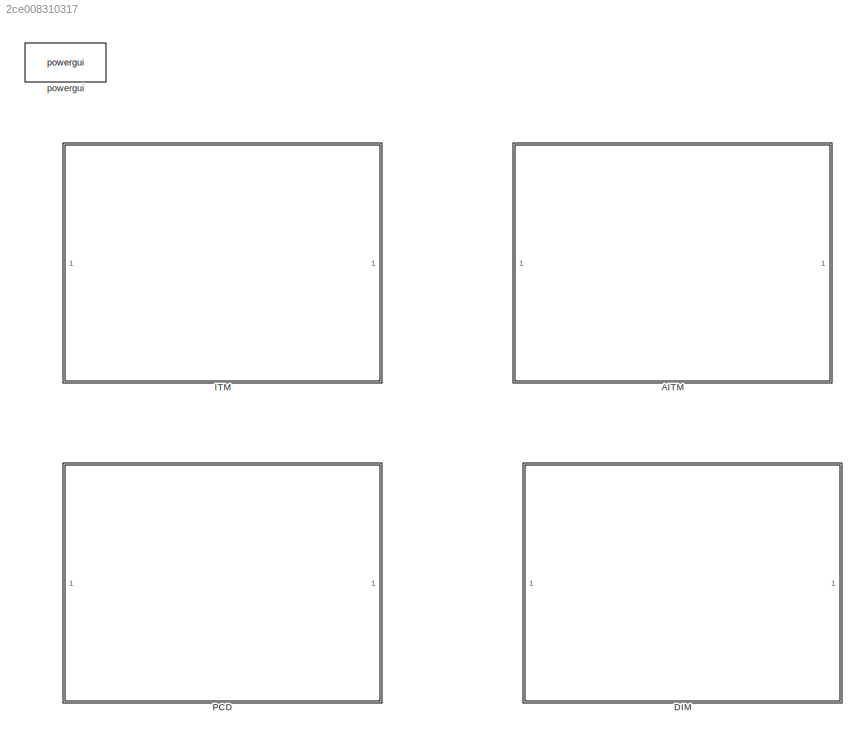
MODEL slx_2ce008310317
KIND model
CONFIG AbsTol = auto
CONFIG EnableMultiTasking = off
CONFIG FixedStep = auto
CONFIG MaxStep = auto
CONFIG MinStep = auto
CONFIG RelTol = 1e-3
CONFIG SampleTimeConstraint = Unconstrained
CONFIG SolverName = ode1
CONFIG StartTime = 0.0
CONFIG StopTime = 1
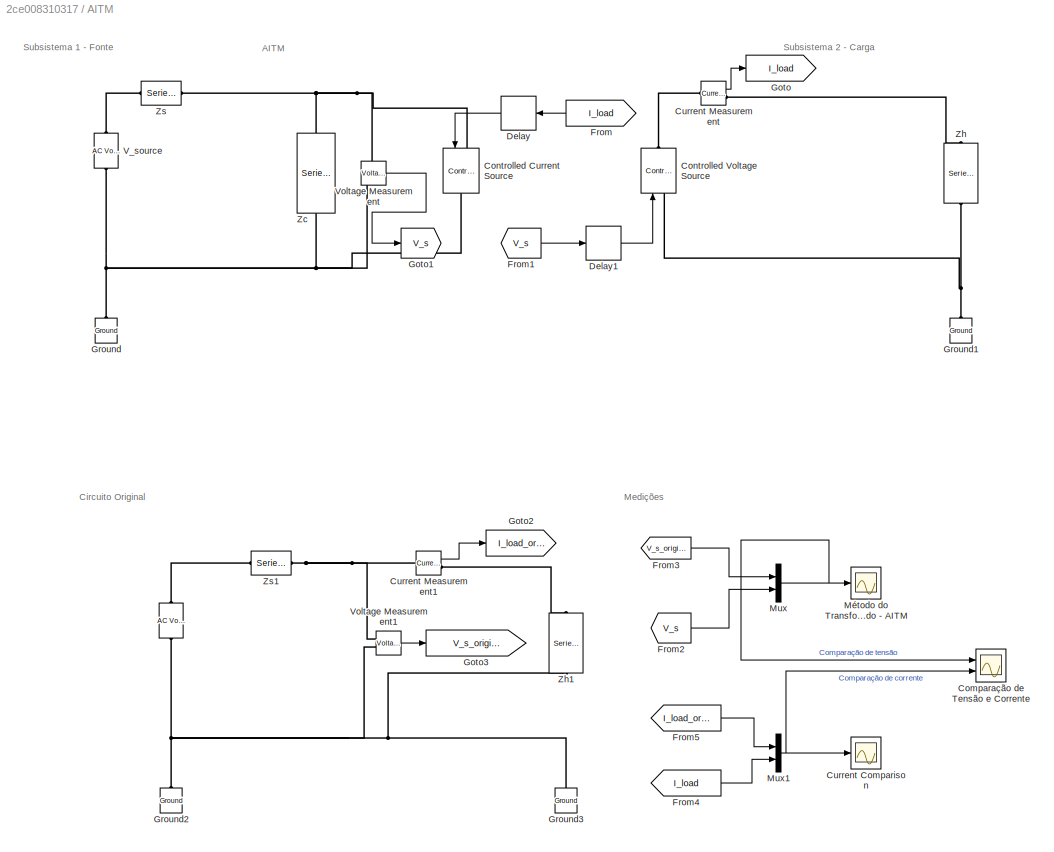
BLOCK [SubSystem] AITM
  Commented = on
  Ports = []
  RequestExecContextInheritance = off
BLOCK [Reference] AITM/   REF=powerlib/Electrical
Sources/AC Voltage Source
  NameLocation = right
  Ports = [0, 0, 0, 0, 0, 1, 1]
  SourceBlock = powerlib/Electrical\nSources/AC Voltage Source
  SourceProductBaseCode = PS
  SourceType = AC Voltage Source
BLOCK [Scope] AITM/Comparação de Tensão e Corrente
  Floating = off
  NumInputPorts = 2
  Ports = [2]
  ScopeSpecificationString = Simulink.scopes.TimeScopeBlockCfg('CurrentConfiguration', extmgr.ConfigurationSet(extmgr.Configuration('Core','General UI',true,'FigureColor',[0 0 0]),extmgr.Configuration('Core','Source UI',true),extmgr.Configuration('Sources','WiredSimulink',true,'DataLoggingVariableName','Aitm','DataLogging',true,'DataLoggingSaveFormat','StructureWithTime'),extmgr.Configuration('Visuals','Time Domain',true,'Ser...<+2428ch>
BLOCK [Reference] AITM/Controlled Current Source  REF=powerlib/Electrical
Sources/Controlled Current Source
  NameLocation = left
  Ports = [1, 0, 0, 0, 0, 1, 1]
  SourceBlock = powerlib/Electrical\nSources/Controlled Current Source
  SourceProductBaseCode = PS
  SourceType = Controlled Current Source
BLOCK [Reference] AITM/Controlled Voltage Source  REF=powerlib/Electrical
Sources/Controlled Voltage Source
  NameLocation = right
  Ports = [1, 0, 0, 0, 0, 1, 1]
  SourceBlock = powerlib/Electrical\nSources/Controlled Voltage Source
  SourceProductBaseCode = PS
  SourceType = Controlled Voltage Source
BLOCK [Scope] AITM/Current Comparison
  Floating = off
  NumInputPorts = 1
  Ports = [1]
  ScopeSpecificationString = Simulink.scopes.TimeScopeBlockCfg('CurrentConfiguration', extmgr.ConfigurationSet(extmgr.Configuration('Core','General UI',true),extmgr.Configuration('Core','Source UI',true),extmgr.Configuration('Sources','WiredSimulink',true,'DataLoggingVariableName','ScopeData2'),extmgr.Configuration('Visuals','Time Domain',true,'SerializedDisplays',{struct('MinYLimReal','-20.83742','MaxYLimReal','21.41239','YL...<+1478ch>
BLOCK [Reference] AITM/Current Measurement  REF=powerlib/Measurements/Current Measurement
  Ports = [0, 1, 0, 0, 0, 1, 1]
  SourceBlock = powerlib/Measurements/Current Measurement
  SourceProductBaseCode = PS
  SourceType = Current Measurement
  UserDataPersistent = on
BLOCK [Reference] AITM/Current Measurement1  REF=powerlib/Measurements/Current Measurement
  Ports = [0, 1, 0, 0, 0, 1, 1]
  SourceBlock = powerlib/Measurements/Current Measurement
  SourceProductBaseCode = PS
  SourceType = Current Measurement
  UserDataPersistent = on
BLOCK [Delay] AITM/Delay
  DelayLength = 5
  InputPortMap = u0
  NameLocation = top
  Ports = [1, 1]
BLOCK [Delay] AITM/Delay1
  DelayLength = 5
  InputPortMap = u0
  Ports = [1, 1]
BLOCK [From] AITM/From
  GotoTag = I_load
  NameLocation = top
BLOCK [From] AITM/From1
  GotoTag = V_s
BLOCK [From] AITM/From2
  GotoTag = V_s
BLOCK [From] AITM/From3
  GotoTag = V_s_original
BLOCK [From] AITM/From4
  GotoTag = I_load
BLOCK [From] AITM/From5
  GotoTag = I_load_original
BLOCK [Goto] AITM/Goto
  GotoTag = I_load
BLOCK [Goto] AITM/Goto1
  GotoTag = V_s
BLOCK [Goto] AITM/Goto2
  GotoTag = I_load_original
BLOCK [Goto] AITM/Goto3
  GotoTag = V_s_original
BLOCK [Reference] AITM/Ground  REF=powerlib/Elements/Ground
  NameLocation = right
  Ports = [0, 0, 0, 0, 0, 1]
  SourceBlock = powerlib/Elements/Ground
  SourceProductBaseCode = PS
  SourceType = Ground
BLOCK [Reference] AITM/Ground1  REF=powerlib/Elements/Ground
  NameLocation = right
  Ports = [0, 0, 0, 0, 0, 1]
  SourceBlock = powerlib/Elements/Ground
  SourceProductBaseCode = PS
  SourceType = Ground
BLOCK [Reference] AITM/Ground2  REF=powerlib/Elements/Ground
  NameLocation = right
  Ports = [0, 0, 0, 0, 0, 1]
  SourceBlock = powerlib/Elements/Ground
  SourceProductBaseCode = PS
  SourceType = Ground
BLOCK [Reference] AITM/Ground3  REF=powerlib/Elements/Ground
  NameLocation = right
  Ports = [0, 0, 0, 0, 0, 1]
  SourceBlock = powerlib/Elements/Ground
  SourceProductBaseCode = PS
  SourceType = Ground
BLOCK [Mux] AITM/Mux
  DisplayOption = bar
  Inputs = 2
  Ports = [2, 1]
BLOCK [Mux] AITM/Mux1
  DisplayOption = bar
  Inputs = 2
  Ports = [2, 1]
BLOCK [Scope] AITM/Método do Transformador Ideal Avançado - AITM
  Floating = off
  NumInputPorts = 1
  Ports = [1]
  ScopeSpecificationString = Simulink.scopes.TimeScopeBlockCfg('CurrentConfiguration', extmgr.ConfigurationSet(extmgr.Configuration('Core','General UI',true),extmgr.Configuration('Core','Source UI',true),extmgr.Configuration('Sources','WiredSimulink',true,'DataLoggingVariableName','aitm','DataLoggingSaveFormat','Array'),extmgr.Configuration('Visuals','Time Domain',true,'SerializedDisplays',{struct('MinYLimReal','-896848945201...<+2012ch>
BLOCK [Reference] AITM/V_source  REF=powerlib/Electrical
Sources/AC Voltage Source
  NameLocation = right
  Ports = [0, 0, 0, 0, 0, 1, 1]
  SourceBlock = powerlib/Electrical\nSources/AC Voltage Source
  SourceProductBaseCode = PS
  SourceType = AC Voltage Source
BLOCK [Reference] AITM/Voltage Measurement  REF=powerlib/Measurements/Voltage Measurement
  Ports = [0, 1, 0, 0, 0, 2]
  SourceBlock = powerlib/Measurements/Voltage Measurement
  SourceProductBaseCode = PS
  SourceType = Voltage Measurement
  UserDataPersistent = on
BLOCK [Reference] AITM/Voltage Measurement1  REF=powerlib/Measurements/Voltage Measurement
  Ports = [0, 1, 0, 0, 0, 2]
  SourceBlock = powerlib/Measurements/Voltage Measurement
  SourceProductBaseCode = PS
  SourceType = Voltage Measurement
  UserDataPersistent = on
BLOCK [Reference] AITM/Zc  REF=powerlib/Elements/Series RLC Branch
  NameLocation = left
  Ports = [0, 0, 0, 0, 0, 1, 1]
  SourceBlock = powerlib/Elements/Series RLC Branch
  SourceProductBaseCode = PS
  SourceType = Series RLC Branch
BLOCK [Reference] AITM/Zh  REF=powerlib/Elements/Series RLC Branch
  NameLocation = left
  Ports = [0, 0, 0, 0, 0, 1, 1]
  SourceBlock = powerlib/Elements/Series RLC Branch
  SourceProductBaseCode = PS
  SourceType = Series RLC Branch
BLOCK [Reference] AITM/Zh1  REF=powerlib/Elements/Series RLC Branch
  NameLocation = left
  Ports = [0, 0, 0, 0, 0, 1, 1]
  SourceBlock = powerlib/Elements/Series RLC Branch
  SourceProductBaseCode = PS
  SourceType = Series RLC Branch
BLOCK [Reference] AITM/Zs  REF=powerlib/Elements/Series RLC Branch
  Ports = [0, 0, 0, 0, 0, 1, 1]
  SourceBlock = powerlib/Elements/Series RLC Branch
  SourceProductBaseCode = PS
  SourceType = Series RLC Branch
BLOCK [Reference] AITM/Zs1  REF=powerlib/Elements/Series RLC Branch
  Ports = [0, 0, 0, 0, 0, 1, 1]
  SourceBlock = powerlib/Elements/Series RLC Branch
  SourceProductBaseCode = PS
  SourceType = Series RLC Branch
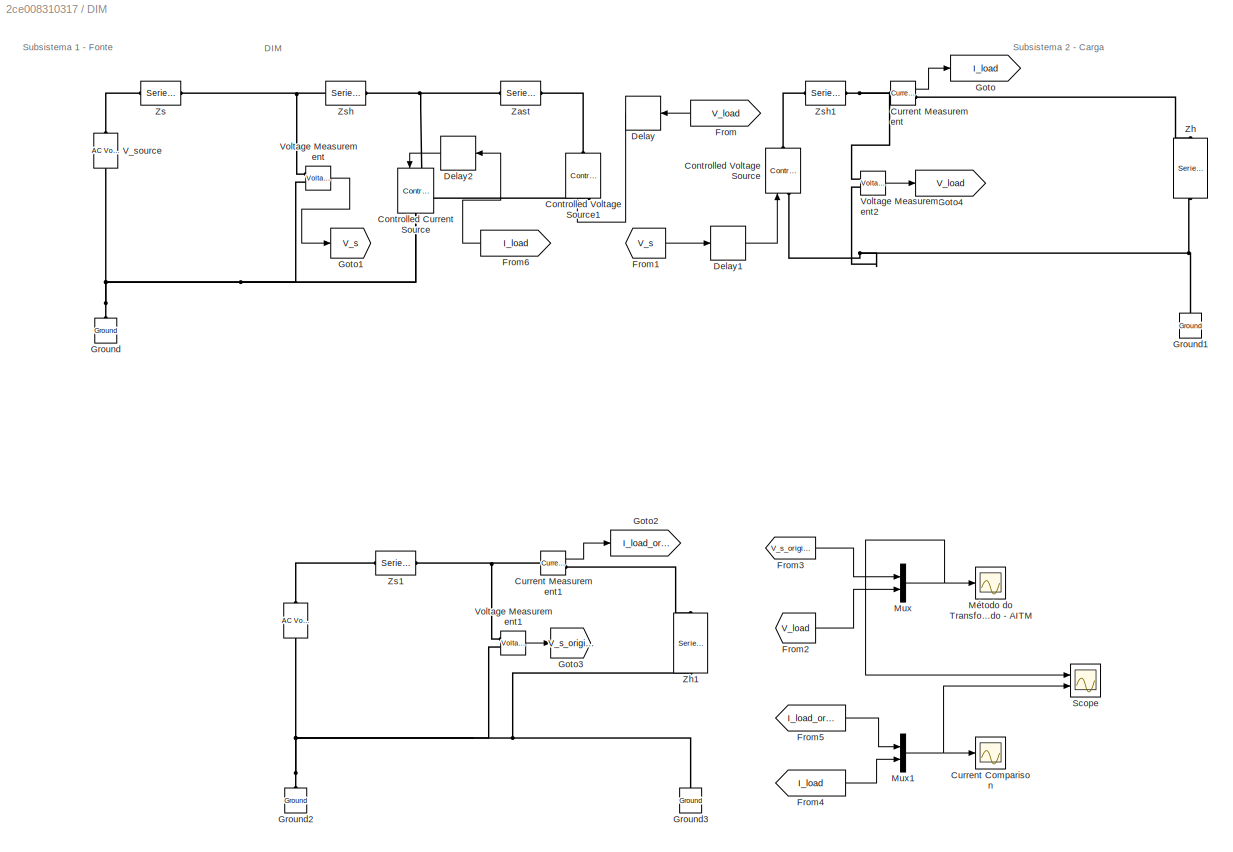
BLOCK [SubSystem] DIM
  Commented = on
  Ports = []
  RequestExecContextInheritance = off
BLOCK [Reference] DIM/   REF=powerlib/Electrical
Sources/AC Voltage Source
  NameLocation = right
  Ports = [0, 0, 0, 0, 0, 1, 1]
  SourceBlock = powerlib/Electrical\nSources/AC Voltage Source
  SourceProductBaseCode = PS
  SourceType = AC Voltage Source
BLOCK [Reference] DIM/Controlled Current Source  REF=powerlib/Electrical
Sources/Controlled Current Source
  NameLocation = left
  Ports = [1, 0, 0, 0, 0, 1, 1]
  SourceBlock = powerlib/Electrical\nSources/Controlled Current Source
  SourceProductBaseCode = PS
  SourceType = Controlled Current Source
BLOCK [Reference] DIM/Controlled Voltage Source  REF=powerlib/Electrical
Sources/Controlled Voltage Source
  NameLocation = right
  Ports = [1, 0, 0, 0, 0, 1, 1]
  SourceBlock = powerlib/Electrical\nSources/Controlled Voltage Source
  SourceProductBaseCode = PS
  SourceType = Controlled Voltage Source
BLOCK [Reference] DIM/Controlled Voltage Source1  REF=powerlib/Electrical
Sources/Controlled Voltage Source
  NameLocation = left
  Ports = [1, 0, 0, 0, 0, 1, 1]
  SourceBlock = powerlib/Electrical\nSources/Controlled Voltage Source
  SourceProductBaseCode = PS
  SourceType = Controlled Voltage Source
BLOCK [Scope] DIM/Current Comparison
  Floating = off
  NumInputPorts = 1
  Ports = [1]
  ScopeSpecificationString = Simulink.scopes.TimeScopeBlockCfg('CurrentConfiguration', extmgr.ConfigurationSet(extmgr.Configuration('Core','General UI',true),extmgr.Configuration('Core','Source UI',true),extmgr.Configuration('Sources','WiredSimulink',true,'DataLoggingVariableName','ScopeData2'),extmgr.Configuration('Visuals','Time Domain',true,'SerializedDisplays',{struct('MinYLimReal','-17.83123','MaxYLimReal','17.83123','YL...<+1407ch>
BLOCK [Reference] DIM/Current Measurement  REF=powerlib/Measurements/Current Measurement
  Ports = [0, 1, 0, 0, 0, 1, 1]
  SourceBlock = powerlib/Measurements/Current Measurement
  SourceProductBaseCode = PS
  SourceType = Current Measurement
  UserDataPersistent = on
BLOCK [Reference] DIM/Current Measurement1  REF=powerlib/Measurements/Current Measurement
  Ports = [0, 1, 0, 0, 0, 1, 1]
  SourceBlock = powerlib/Measurements/Current Measurement
  SourceProductBaseCode = PS
  SourceType = Current Measurement
  UserDataPersistent = on
BLOCK [Delay] DIM/Delay
  DelayLength = 5
  InputPortMap = u0
  NameLocation = top
  Ports = [1, 1]
BLOCK [Delay] DIM/Delay1
  DelayLength = 5
  InputPortMap = u0
  Ports = [1, 1]
BLOCK [Delay] DIM/Delay2
  DelayLength = 5
  InputPortMap = u0
  NameLocation = top
  Ports = [1, 1]
BLOCK [From] DIM/From
  GotoTag = V_load
  NameLocation = top
BLOCK [From] DIM/From1
  GotoTag = V_s
BLOCK [From] DIM/From2
  GotoTag = V_load
BLOCK [From] DIM/From3
  GotoTag = V_s_original
BLOCK [From] DIM/From4
  GotoTag = I_load
BLOCK [From] DIM/From5
  GotoTag = I_load_original
BLOCK [From] DIM/From6
  GotoTag = I_load
  NameLocation = top
BLOCK [Goto] DIM/Goto
  GotoTag = I_load
BLOCK [Goto] DIM/Goto1
  GotoTag = V_s
BLOCK [Goto] DIM/Goto2
  GotoTag = I_load_original
BLOCK [Goto] DIM/Goto3
  GotoTag = V_s_original
BLOCK [Goto] DIM/Goto4
  GotoTag = V_load
BLOCK [Reference] DIM/Ground  REF=powerlib/Elements/Ground
  NameLocation = right
  Ports = [0, 0, 0, 0, 0, 1]
  SourceBlock = powerlib/Elements/Ground
  SourceProductBaseCode = PS
  SourceType = Ground
BLOCK [Reference] DIM/Ground1  REF=powerlib/Elements/Ground
  NameLocation = right
  Ports = [0, 0, 0, 0, 0, 1]
  SourceBlock = powerlib/Elements/Ground
  SourceProductBaseCode = PS
  SourceType = Ground
BLOCK [Reference] DIM/Ground2  REF=powerlib/Elements/Ground
  NameLocation = right
  Ports = [0, 0, 0, 0, 0, 1]
  SourceBlock = powerlib/Elements/Ground
  SourceProductBaseCode = PS
  SourceType = Ground
BLOCK [Reference] DIM/Ground3  REF=powerlib/Elements/Ground
  NameLocation = right
  Ports = [0, 0, 0, 0, 0, 1]
  SourceBlock = powerlib/Elements/Ground
  SourceProductBaseCode = PS
  SourceType = Ground
BLOCK [Mux] DIM/Mux
  DisplayOption = bar
  Inputs = 2
  Ports = [2, 1]
BLOCK [Mux] DIM/Mux1
  DisplayOption = bar
  Inputs = 2
  Ports = [2, 1]
BLOCK [Scope] DIM/Método do Transformador Ideal Avançado - AITM
  Floating = off
  NumInputPorts = 1
  Ports = [1]
  ScopeSpecificationString = Simulink.scopes.TimeScopeBlockCfg('CurrentConfiguration', extmgr.ConfigurationSet(extmgr.Configuration('Core','General UI',true),extmgr.Configuration('Core','Source UI',true),extmgr.Configuration('Sources','WiredSimulink',true,'DataLoggingVariableName','aitm2','DataLoggingSaveFormat','Array'),extmgr.Configuration('Visuals','Time Domain',true,'SerializedDisplays',{struct('MinYLimReal','-89.40928','...<+1764ch>
BLOCK [Scope] DIM/Scope
  Floating = off
  NumInputPorts = 2
  Ports = [2]
  ScopeSpecificationString = Simulink.scopes.TimeScopeBlockCfg('CurrentConfiguration', extmgr.ConfigurationSet(extmgr.Configuration('Core','General UI',true),extmgr.Configuration('Core','Source UI',true),extmgr.Configuration('Sources','WiredSimulink',true,'DataLoggingVariableName','DIM','DataLogging',true,'DataLoggingSaveFormat','StructureWithTime'),extmgr.Configuration('Visuals','Time Domain',true,'SerializedDisplays',{struc...<+2115ch>
BLOCK [Reference] DIM/V_source  REF=powerlib/Electrical
Sources/AC Voltage Source
  NameLocation = right
  Ports = [0, 0, 0, 0, 0, 1, 1]
  SourceBlock = powerlib/Electrical\nSources/AC Voltage Source
  SourceProductBaseCode = PS
  SourceType = AC Voltage Source
BLOCK [Reference] DIM/Voltage Measurement  REF=powerlib/Measurements/Voltage Measurement
  Ports = [0, 1, 0, 0, 0, 2]
  SourceBlock = powerlib/Measurements/Voltage Measurement
  SourceProductBaseCode = PS
  SourceType = Voltage Measurement
  UserDataPersistent = on
BLOCK [Reference] DIM/Voltage Measurement1  REF=powerlib/Measurements/Voltage Measurement
  Ports = [0, 1, 0, 0, 0, 2]
  SourceBlock = powerlib/Measurements/Voltage Measurement
  SourceProductBaseCode = PS
  SourceType = Voltage Measurement
  UserDataPersistent = on
BLOCK [Reference] DIM/Voltage Measurement2  REF=powerlib/Measurements/Voltage Measurement
  Ports = [0, 1, 0, 0, 0, 2]
  SourceBlock = powerlib/Measurements/Voltage Measurement
  SourceProductBaseCode = PS
  SourceType = Voltage Measurement
  UserDataPersistent = on
BLOCK [Reference] DIM/Zast  REF=powerlib/Elements/Series RLC Branch
  Ports = [0, 0, 0, 0, 0, 1, 1]
  SourceBlock = powerlib/Elements/Series RLC Branch
  SourceProductBaseCode = PS
  SourceType = Series RLC Branch
BLOCK [Reference] DIM/Zh  REF=powerlib/Elements/Series RLC Branch
  NameLocation = left
  Ports = [0, 0, 0, 0, 0, 1, 1]
  SourceBlock = powerlib/Elements/Series RLC Branch
  SourceProductBaseCode = PS
  SourceType = Series RLC Branch
BLOCK [Reference] DIM/Zh1  REF=powerlib/Elements/Series RLC Branch
  NameLocation = left
  Ports = [0, 0, 0, 0, 0, 1, 1]
  SourceBlock = powerlib/Elements/Series RLC Branch
  SourceProductBaseCode = PS
  SourceType = Series RLC Branch
BLOCK [Reference] DIM/Zs  REF=powerlib/Elements/Series RLC Branch
  Ports = [0, 0, 0, 0, 0, 1, 1]
  SourceBlock = powerlib/Elements/Series RLC Branch
  SourceProductBaseCode = PS
  SourceType = Series RLC Branch
BLOCK [Reference] DIM/Zs1  REF=powerlib/Elements/Series RLC Branch
  Ports = [0, 0, 0, 0, 0, 1, 1]
  SourceBlock = powerlib/Elements/Series RLC Branch
  SourceProductBaseCode = PS
  SourceType = Series RLC Branch
BLOCK [Reference] DIM/Zsh  REF=powerlib/Elements/Series RLC Branch
  Ports = [0, 0, 0, 0, 0, 1, 1]
  SourceBlock = powerlib/Elements/Series RLC Branch
  SourceProductBaseCode = PS
  SourceType = Series RLC Branch
BLOCK [Reference] DIM/Zsh1  REF=powerlib/Elements/Series RLC Branch
  Ports = [0, 0, 0, 0, 0, 1, 1]
  SourceBlock = powerlib/Elements/Series RLC Branch
  SourceProductBaseCode = PS
  SourceType = Series RLC Branch
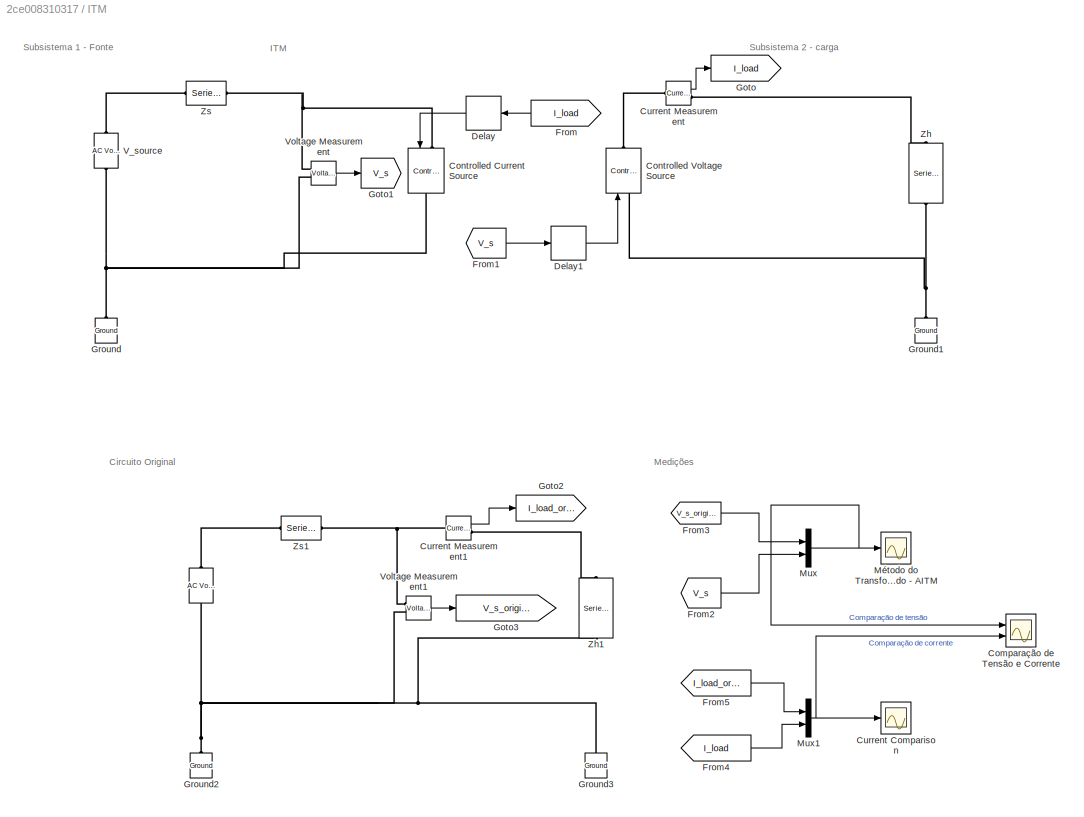
BLOCK [SubSystem] ITM
  Ports = []
  RequestExecContextInheritance = off
BLOCK [Reference] ITM/   REF=powerlib/Electrical
Sources/AC Voltage Source
  NameLocation = right
  Ports = [0, 0, 0, 0, 0, 1, 1]
  SourceBlock = powerlib/Electrical\nSources/AC Voltage Source
  SourceProductBaseCode = PS
  SourceType = AC Voltage Source
BLOCK [Scope] ITM/Comparação de Tensão e Corrente
  Floating = off
  NumInputPorts = 2
  Ports = [2]
  ScopeSpecificationString = Simulink.scopes.TimeScopeBlockCfg('CurrentConfiguration', extmgr.ConfigurationSet(extmgr.Configuration('Core','General UI',true,'FigureColor',[0 0 0]),extmgr.Configuration('Core','Source UI',true),extmgr.Configuration('Sources','WiredSimulink',true,'DataLoggingVariableName','ITM','DataLogging',true,'DataLoggingSaveFormat','StructureWithTime'),extmgr.Configuration('Visuals','Time Domain',true,'Seri...<+2427ch>
BLOCK [Reference] ITM/Controlled Current Source  REF=powerlib/Electrical
Sources/Controlled Current Source
  NameLocation = left
  Ports = [1, 0, 0, 0, 0, 1, 1]
  SourceBlock = powerlib/Electrical\nSources/Controlled Current Source
  SourceProductBaseCode = PS
  SourceType = Controlled Current Source
BLOCK [Reference] ITM/Controlled Voltage Source  REF=powerlib/Electrical
Sources/Controlled Voltage Source
  NameLocation = right
  Ports = [1, 0, 0, 0, 0, 1, 1]
  SourceBlock = powerlib/Electrical\nSources/Controlled Voltage Source
  SourceProductBaseCode = PS
  SourceType = Controlled Voltage Source
BLOCK [Scope] ITM/Current Comparison
  Floating = off
  NumInputPorts = 1
  Ports = [1]
  ScopeSpecificationString = Simulink.scopes.TimeScopeBlockCfg('CurrentConfiguration', extmgr.ConfigurationSet(extmgr.Configuration('Core','General UI',true),extmgr.Configuration('Core','Source UI',true),extmgr.Configuration('Sources','WiredSimulink',true,'DataLoggingVariableName','ScopeData2'),extmgr.Configuration('Visuals','Time Domain',true,'SerializedDisplays',{struct('MinYLimReal','-20.83742','MaxYLimReal','21.41239','YL...<+1478ch>
BLOCK [Reference] ITM/Current Measurement  REF=powerlib/Measurements/Current Measurement
  Ports = [0, 1, 0, 0, 0, 1, 1]
  SourceBlock = powerlib/Measurements/Current Measurement
  SourceProductBaseCode = PS
  SourceType = Current Measurement
  UserDataPersistent = on
BLOCK [Reference] ITM/Current Measurement1  REF=powerlib/Measurements/Current Measurement
  Ports = [0, 1, 0, 0, 0, 1, 1]
  SourceBlock = powerlib/Measurements/Current Measurement
  SourceProductBaseCode = PS
  SourceType = Current Measurement
  UserDataPersistent = on
BLOCK [Delay] ITM/Delay
  DelayLength = 5
  InputPortMap = u0
  NameLocation = top
  Ports = [1, 1]
BLOCK [Delay] ITM/Delay1
  DelayLength = 5
  InputPortMap = u0
  Ports = [1, 1]
BLOCK [From] ITM/From
  GotoTag = I_load
  NameLocation = top
BLOCK [From] ITM/From1
  GotoTag = V_s
BLOCK [From] ITM/From2
  GotoTag = V_s
BLOCK [From] ITM/From3
  GotoTag = V_s_original
BLOCK [From] ITM/From4
  GotoTag = I_load
BLOCK [From] ITM/From5
  GotoTag = I_load_original
BLOCK [Goto] ITM/Goto
  GotoTag = I_load
BLOCK [Goto] ITM/Goto1
  GotoTag = V_s
BLOCK [Goto] ITM/Goto2
  GotoTag = I_load_original
BLOCK [Goto] ITM/Goto3
  GotoTag = V_s_original
BLOCK [Reference] ITM/Ground  REF=powerlib/Elements/Ground
  NameLocation = right
  Ports = [0, 0, 0, 0, 0, 1]
  SourceBlock = powerlib/Elements/Ground
  SourceProductBaseCode = PS
  SourceType = Ground
BLOCK [Reference] ITM/Ground1  REF=powerlib/Elements/Ground
  NameLocation = right
  Ports = [0, 0, 0, 0, 0, 1]
  SourceBlock = powerlib/Elements/Ground
  SourceProductBaseCode = PS
  SourceType = Ground
BLOCK [Reference] ITM/Ground2  REF=powerlib/Elements/Ground
  NameLocation = right
  Ports = [0, 0, 0, 0, 0, 1]
  SourceBlock = powerlib/Elements/Ground
  SourceProductBaseCode = PS
  SourceType = Ground
BLOCK [Reference] ITM/Ground3  REF=powerlib/Elements/Ground
  NameLocation = right
  Ports = [0, 0, 0, 0, 0, 1]
  SourceBlock = powerlib/Elements/Ground
  SourceProductBaseCode = PS
  SourceType = Ground
BLOCK [Mux] ITM/Mux
  DisplayOption = bar
  Inputs = 2
  Ports = [2, 1]
BLOCK [Mux] ITM/Mux1
  DisplayOption = bar
  Inputs = 2
  Ports = [2, 1]
BLOCK [Scope] ITM/Método do Transformador Ideal Avançado - AITM
  Floating = off
  NumInputPorts = 1
  Ports = [1]
  ScopeSpecificationString = Simulink.scopes.TimeScopeBlockCfg('CurrentConfiguration', extmgr.ConfigurationSet(extmgr.Configuration('Core','General UI',true),extmgr.Configuration('Core','Source UI',true),extmgr.Configuration('Sources','WiredSimulink',true,'DataLoggingVariableName','ScopeData3','DataLoggingSaveFormat','Array'),extmgr.Configuration('Visuals','Time Domain',true,'SerializedDisplays',{struct('MinYLimReal','-896848...<+2018ch>
BLOCK [Reference] ITM/V_source  REF=powerlib/Electrical
Sources/AC Voltage Source
  NameLocation = right
  Ports = [0, 0, 0, 0, 0, 1, 1]
  SourceBlock = powerlib/Electrical\nSources/AC Voltage Source
  SourceProductBaseCode = PS
  SourceType = AC Voltage Source
BLOCK [Reference] ITM/Voltage Measurement  REF=powerlib/Measurements/Voltage Measurement
  Ports = [0, 1, 0, 0, 0, 2]
  SourceBlock = powerlib/Measurements/Voltage Measurement
  SourceProductBaseCode = PS
  SourceType = Voltage Measurement
  UserDataPersistent = on
BLOCK [Reference] ITM/Voltage Measurement1  REF=powerlib/Measurements/Voltage Measurement
  Ports = [0, 1, 0, 0, 0, 2]
  SourceBlock = powerlib/Measurements/Voltage Measurement
  SourceProductBaseCode = PS
  SourceType = Voltage Measurement
  UserDataPersistent = on
BLOCK [Reference] ITM/Zh  REF=powerlib/Elements/Series RLC Branch
  NameLocation = left
  Ports = [0, 0, 0, 0, 0, 1, 1]
  SourceBlock = powerlib/Elements/Series RLC Branch
  SourceProductBaseCode = PS
  SourceType = Series RLC Branch
BLOCK [Reference] ITM/Zh1  REF=powerlib/Elements/Series RLC Branch
  NameLocation = left
  Ports = [0, 0, 0, 0, 0, 1, 1]
  SourceBlock = powerlib/Elements/Series RLC Branch
  SourceProductBaseCode = PS
  SourceType = Series RLC Branch
BLOCK [Reference] ITM/Zs  REF=powerlib/Elements/Series RLC Branch
  Ports = [0, 0, 0, 0, 0, 1, 1]
  SourceBlock = powerlib/Elements/Series RLC Branch
  SourceProductBaseCode = PS
  SourceType = Series RLC Branch
BLOCK [Reference] ITM/Zs1  REF=powerlib/Elements/Series RLC Branch
  Ports = [0, 0, 0, 0, 0, 1, 1]
  SourceBlock = powerlib/Elements/Series RLC Branch
  SourceProductBaseCode = PS
  SourceType = Series RLC Branch
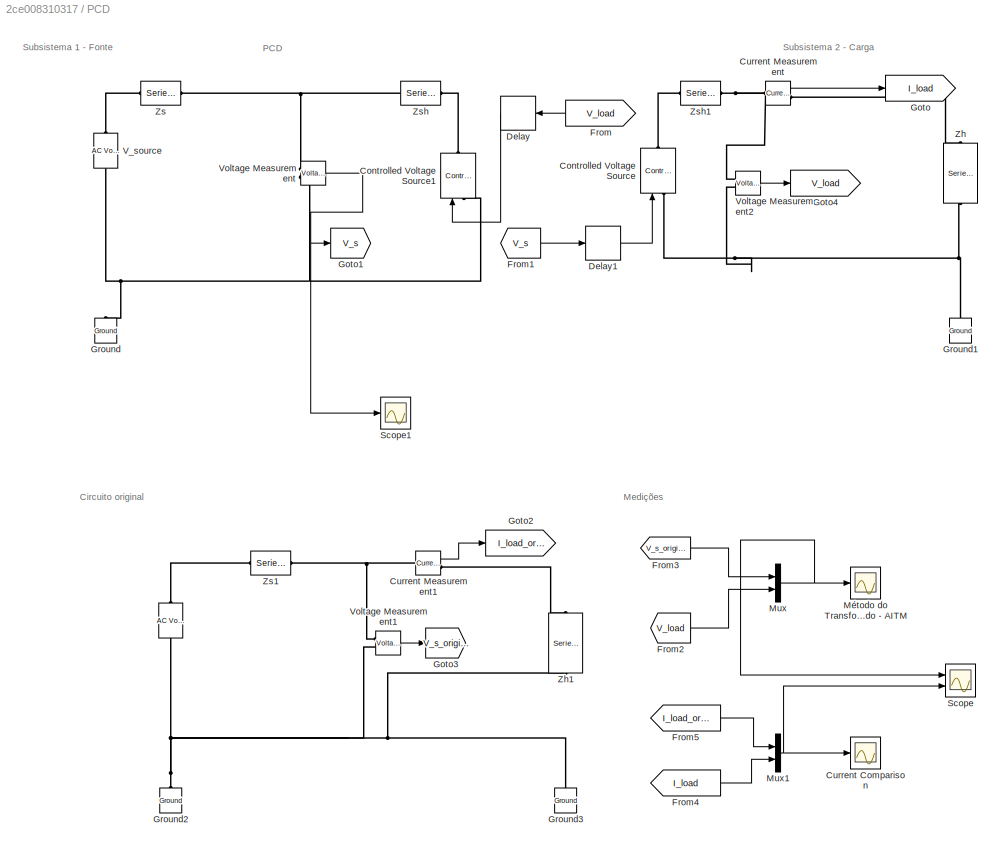
BLOCK [SubSystem] PCD
  Ports = []
  RequestExecContextInheritance = off
BLOCK [Reference] PCD/   REF=powerlib/Electrical
Sources/AC Voltage Source
  NameLocation = right
  Ports = [0, 0, 0, 0, 0, 1, 1]
  SourceBlock = powerlib/Electrical\nSources/AC Voltage Source
  SourceProductBaseCode = PS
  SourceType = AC Voltage Source
BLOCK [Reference] PCD/Controlled Voltage Source  REF=powerlib/Electrical
Sources/Controlled Voltage Source
  NameLocation = right
  Ports = [1, 0, 0, 0, 0, 1, 1]
  SourceBlock = powerlib/Electrical\nSources/Controlled Voltage Source
  SourceProductBaseCode = PS
  SourceType = Controlled Voltage Source
BLOCK [Reference] PCD/Controlled Voltage Source1  REF=powerlib/Electrical
Sources/Controlled Voltage Source
  NameLocation = left
  Ports = [1, 0, 0, 0, 0, 1, 1]
  SourceBlock = powerlib/Electrical\nSources/Controlled Voltage Source
  SourceProductBaseCode = PS
  SourceType = Controlled Voltage Source
BLOCK [Scope] PCD/Current Comparison
  Floating = off
  NumInputPorts = 1
  Ports = [1]
  ScopeSpecificationString = Simulink.scopes.TimeScopeBlockCfg('CurrentConfiguration', extmgr.ConfigurationSet(extmgr.Configuration('Core','General UI',true),extmgr.Configuration('Core','Source UI',true),extmgr.Configuration('Sources','WiredSimulink',true,'DataLoggingVariableName','ScopeData1'),extmgr.Configuration('Visuals','Time Domain',true,'SerializedDisplays',{struct('MinYLimReal','-17.83123','MaxYLimReal','17.83123','YL...<+1426ch>
BLOCK [Reference] PCD/Current Measurement  REF=powerlib/Measurements/Current Measurement
  Ports = [0, 1, 0, 0, 0, 1, 1]
  SourceBlock = powerlib/Measurements/Current Measurement
  SourceProductBaseCode = PS
  SourceType = Current Measurement
  UserDataPersistent = on
BLOCK [Reference] PCD/Current Measurement1  REF=powerlib/Measurements/Current Measurement
  Ports = [0, 1, 0, 0, 0, 1, 1]
  SourceBlock = powerlib/Measurements/Current Measurement
  SourceProductBaseCode = PS
  SourceType = Current Measurement
  UserDataPersistent = on
BLOCK [Delay] PCD/Delay
  DelayLength = 5
  InputPortMap = u0
  NameLocation = top
  Ports = [1, 1]
BLOCK [Delay] PCD/Delay1
  DelayLength = 5
  InputPortMap = u0
  Ports = [1, 1]
BLOCK [From] PCD/From
  GotoTag = V_load
  NameLocation = top
BLOCK [From] PCD/From1
  GotoTag = V_s
BLOCK [From] PCD/From2
  GotoTag = V_load
BLOCK [From] PCD/From3
  GotoTag = V_s_original
BLOCK [From] PCD/From4
  GotoTag = I_load
BLOCK [From] PCD/From5
  GotoTag = I_load_original
BLOCK [Goto] PCD/Goto
  GotoTag = I_load
BLOCK [Goto] PCD/Goto1
  GotoTag = V_s
BLOCK [Goto] PCD/Goto2
  GotoTag = I_load_original
BLOCK [Goto] PCD/Goto3
  GotoTag = V_s_original
BLOCK [Goto] PCD/Goto4
  GotoTag = V_load
BLOCK [Reference] PCD/Ground  REF=powerlib/Elements/Ground
  NameLocation = right
  Ports = [0, 0, 0, 0, 0, 1]
  SourceBlock = powerlib/Elements/Ground
  SourceProductBaseCode = PS
  SourceType = Ground
BLOCK [Reference] PCD/Ground1  REF=powerlib/Elements/Ground
  NameLocation = right
  Ports = [0, 0, 0, 0, 0, 1]
  SourceBlock = powerlib/Elements/Ground
  SourceProductBaseCode = PS
  SourceType = Ground
BLOCK [Reference] PCD/Ground2  REF=powerlib/Elements/Ground
  NameLocation = right
  Ports = [0, 0, 0, 0, 0, 1]
  SourceBlock = powerlib/Elements/Ground
  SourceProductBaseCode = PS
  SourceType = Ground
BLOCK [Reference] PCD/Ground3  REF=powerlib/Elements/Ground
  NameLocation = right
  Ports = [0, 0, 0, 0, 0, 1]
  SourceBlock = powerlib/Elements/Ground
  SourceProductBaseCode = PS
  SourceType = Ground
BLOCK [Mux] PCD/Mux
  DisplayOption = bar
  Inputs = 2
  Ports = [2, 1]
BLOCK [Mux] PCD/Mux1
  DisplayOption = bar
  Inputs = 2
  Ports = [2, 1]
BLOCK [Scope] PCD/Método do Transformador Ideal Avançado - AITM
  Floating = off
  NumInputPorts = 1
  Ports = [1]
  ScopeSpecificationString = Simulink.scopes.TimeScopeBlockCfg('CurrentConfiguration', extmgr.ConfigurationSet(extmgr.Configuration('Core','General UI',true),extmgr.Configuration('Core','Source UI',true),extmgr.Configuration('Sources','WiredSimulink',true,'DataLoggingVariableName','aitm1','DataLoggingSaveFormat','Array'),extmgr.Configuration('Visuals','Time Domain',true,'SerializedDisplays',{struct('MinYLimReal','-89.40928','...<+1765ch>
BLOCK [Scope] PCD/Scope
  Floating = off
  NumInputPorts = 2
  Ports = [2]
  ScopeSpecificationString = Simulink.scopes.TimeScopeBlockCfg('CurrentConfiguration', extmgr.ConfigurationSet(extmgr.Configuration('Core','General UI',true),extmgr.Configuration('Core','Source UI',true),extmgr.Configuration('Sources','WiredSimulink',true,'DataLoggingVariableName','PCD','DataLogging',true,'DataLoggingSaveFormat','StructureWithTime'),extmgr.Configuration('Visuals','Time Domain',true,'SerializedDisplays',{struc...<+2096ch>
BLOCK [Scope] PCD/Scope1
  Floating = off
  NumInputPorts = 1
  Ports = [1]
  ScopeSpecificationString = Simulink.scopes.TimeScopeBlockCfg('CurrentConfiguration', extmgr.ConfigurationSet(extmgr.Configuration('Core','General UI',true),extmgr.Configuration('Core','Source UI',true),extmgr.Configuration('Sources','WiredSimulink',true,'DataLoggingVariableName','ScopeData2'),extmgr.Configuration('Visuals','Time Domain',true,'SerializedDisplays',{struct('MinYLimReal','-119.16084','MaxYLimReal','119.16084','...<+1450ch>
BLOCK [Reference] PCD/V_source  REF=powerlib/Electrical
Sources/AC Voltage Source
  NameLocation = right
  Ports = [0, 0, 0, 0, 0, 1, 1]
  SourceBlock = powerlib/Electrical\nSources/AC Voltage Source
  SourceProductBaseCode = PS
  SourceType = AC Voltage Source
BLOCK [Reference] PCD/Voltage Measurement  REF=powerlib/Measurements/Voltage Measurement
  Ports = [0, 1, 0, 0, 0, 2]
  SourceBlock = powerlib/Measurements/Voltage Measurement
  SourceProductBaseCode = PS
  SourceType = Voltage Measurement
  UserDataPersistent = on
BLOCK [Reference] PCD/Voltage Measurement1  REF=powerlib/Measurements/Voltage Measurement
  Ports = [0, 1, 0, 0, 0, 2]
  SourceBlock = powerlib/Measurements/Voltage Measurement
  SourceProductBaseCode = PS
  SourceType = Voltage Measurement
  UserDataPersistent = on
BLOCK [Reference] PCD/Voltage Measurement2  REF=powerlib/Measurements/Voltage Measurement
  Ports = [0, 1, 0, 0, 0, 2]
  SourceBlock = powerlib/Measurements/Voltage Measurement
  SourceProductBaseCode = PS
  SourceType = Voltage Measurement
  UserDataPersistent = on
BLOCK [Reference] PCD/Zh  REF=powerlib/Elements/Series RLC Branch
  NameLocation = left
  Ports = [0, 0, 0, 0, 0, 1, 1]
  SourceBlock = powerlib/Elements/Series RLC Branch
  SourceProductBaseCode = PS
  SourceType = Series RLC Branch
BLOCK [Reference] PCD/Zh1  REF=powerlib/Elements/Series RLC Branch
  NameLocation = left
  Ports = [0, 0, 0, 0, 0, 1, 1]
  SourceBlock = powerlib/Elements/Series RLC Branch
  SourceProductBaseCode = PS
  SourceType = Series RLC Branch
BLOCK [Reference] PCD/Zs  REF=powerlib/Elements/Series RLC Branch
  Ports = [0, 0, 0, 0, 0, 1, 1]
  SourceBlock = powerlib/Elements/Series RLC Branch
  SourceProductBaseCode = PS
  SourceType = Series RLC Branch
BLOCK [Reference] PCD/Zs1  REF=powerlib/Elements/Series RLC Branch
  Ports = [0, 0, 0, 0, 0, 1, 1]
  SourceBlock = powerlib/Elements/Series RLC Branch
  SourceProductBaseCode = PS
  SourceType = Series RLC Branch
BLOCK [Reference] PCD/Zsh  REF=powerlib/Elements/Series RLC Branch
  Ports = [0, 0, 0, 0, 0, 1, 1]
  SourceBlock = powerlib/Elements/Series RLC Branch
  SourceProductBaseCode = PS
  SourceType = Series RLC Branch
BLOCK [Reference] PCD/Zsh1  REF=powerlib/Elements/Series RLC Branch
  Ports = [0, 0, 0, 0, 0, 1, 1]
  SourceBlock = powerlib/Elements/Series RLC Branch
  SourceProductBaseCode = PS
  SourceType = Series RLC Branch
BLOCK [Reference] powergui  REF=powerlib/powergui
  Ports = []
  Priority = 1
  SourceBlock = powerlib/powergui
  SourceProductBaseCode = PS
  SourceType = PSB option menu block
ANNOTATION AITM: AITM
ANNOTATION AITM: Circuito Original
ANNOTATION AITM: Medições
ANNOTATION AITM: Subsistema 1 - Fonte
ANNOTATION AITM: Subsistema 2 - Carga
ANNOTATION DIM: DIM
ANNOTATION DIM: Subsistema 1 - Fonte
ANNOTATION DIM: Subsistema 2 - Carga
ANNOTATION ITM: ITM
ANNOTATION ITM: Circuito Original
ANNOTATION ITM: Medições
ANNOTATION ITM: Subsistema 1 - Fonte
ANNOTATION ITM: Subsistema 2 - carga
ANNOTATION PCD: PCD
ANNOTATION PCD: Circuito original
ANNOTATION PCD: Medições
ANNOTATION PCD: Subsistema 1 - Fonte
ANNOTATION PCD: Subsistema 2 - Carga
LINE AITM/Current Measurement1:1 -> AITM/Goto2:1
LINE AITM/Current Measurement:1 -> AITM/Goto:1
LINE AITM/Delay1:1 -> AITM/Controlled Voltage Source:1
LINE AITM/Delay:1 -> AITM/Controlled Current Source:1
LINE AITM/From1:1 -> AITM/Delay1:1
LINE AITM/From2:1 -> AITM/Mux:2
LINE AITM/From3:1 -> AITM/Mux:1
LINE AITM/From4:1 -> AITM/Mux1:2
LINE AITM/From5:1 -> AITM/Mux1:1
LINE AITM/From:1 -> AITM/Delay:1
NET AITM/Mux1:1 -> AITM/Comparação de Tensão e Corrente:2, AITM/Current Comparison:1
NET AITM/Mux:1 -> AITM/Comparação de Tensão e Corrente:1, AITM/Método do Transformador Ideal Avançado - AITM:1
LINE AITM/Voltage Measurement1:1 -> AITM/Goto3:1
LINE AITM/Voltage Measurement:1 -> AITM/Goto1:1
LINE DIM/Current Measurement1:1 -> DIM/Goto2:1
LINE DIM/Current Measurement:1 -> DIM/Goto:1
LINE DIM/Delay1:1 -> DIM/Controlled Voltage Source:1
LINE DIM/Delay2:1 -> DIM/Controlled Current Source:1
LINE DIM/Delay:1 -> DIM/Controlled Voltage Source1:1
LINE DIM/From1:1 -> DIM/Delay1:1
LINE DIM/From2:1 -> DIM/Mux:2
LINE DIM/From3:1 -> DIM/Mux:1
LINE DIM/From4:1 -> DIM/Mux1:2
LINE DIM/From5:1 -> DIM/Mux1:1
LINE DIM/From6:1 -> DIM/Delay2:1
LINE DIM/From:1 -> DIM/Delay:1
NET DIM/Mux1:1 -> DIM/Current Comparison:1, DIM/Scope:2
NET DIM/Mux:1 -> DIM/Método do Transformador Ideal Avançado - AITM:1, DIM/Scope:1
LINE DIM/Voltage Measurement1:1 -> DIM/Goto3:1
LINE DIM/Voltage Measurement2:1 -> DIM/Goto4:1
LINE DIM/Voltage Measurement:1 -> DIM/Goto1:1
LINE ITM/Current Measurement1:1 -> ITM/Goto2:1
LINE ITM/Current Measurement:1 -> ITM/Goto:1
LINE ITM/Delay1:1 -> ITM/Controlled Voltage Source:1
LINE ITM/Delay:1 -> ITM/Controlled Current Source:1
LINE ITM/From1:1 -> ITM/Delay1:1
LINE ITM/From2:1 -> ITM/Mux:2
LINE ITM/From3:1 -> ITM/Mux:1
LINE ITM/From4:1 -> ITM/Mux1:2
LINE ITM/From5:1 -> ITM/Mux1:1
LINE ITM/From:1 -> ITM/Delay:1
NET ITM/Mux1:1 -> ITM/Comparação de Tensão e Corrente:2, ITM/Current Comparison:1
NET ITM/Mux:1 -> ITM/Comparação de Tensão e Corrente:1, ITM/Método do Transformador Ideal Avançado - AITM:1
LINE ITM/Voltage Measurement1:1 -> ITM/Goto3:1
LINE ITM/Voltage Measurement:1 -> ITM/Goto1:1
LINE PCD/Current Measurement1:1 -> PCD/Goto2:1
LINE PCD/Current Measurement:1 -> PCD/Goto:1
LINE PCD/Delay1:1 -> PCD/Controlled Voltage Source:1
LINE PCD/Delay:1 -> PCD/Controlled Voltage Source1:1
LINE PCD/From1:1 -> PCD/Delay1:1
LINE PCD/From2:1 -> PCD/Mux:2
LINE PCD/From3:1 -> PCD/Mux:1
LINE PCD/From4:1 -> PCD/Mux1:2
LINE PCD/From5:1 -> PCD/Mux1:1
LINE PCD/From:1 -> PCD/Delay:1
NET PCD/Mux1:1 -> PCD/Current Comparison:1, PCD/Scope:2
NET PCD/Mux:1 -> PCD/Método do Transformador Ideal Avançado - AITM:1, PCD/Scope:1
LINE PCD/Voltage Measurement1:1 -> PCD/Goto3:1
LINE PCD/Voltage Measurement2:1 -> PCD/Goto4:1
NET PCD/Voltage Measurement:1 -> PCD/Goto1:1, PCD/Scope1:1
PNET net1: AITM/ :LConn1 -- AITM/Ground2:LConn1 -- AITM/Ground3:LConn1 -- AITM/Voltage Measurement1:LConn2 -- AITM/Zh1:RConn1
PLINE AITM/ :RConn1 -- AITM/Zs1:LConn1
PNET net2: AITM/Controlled Current Source:LConn1 -- AITM/Voltage Measurement:LConn1 -- AITM/Zc:LConn1 -- AITM/Zs:RConn1
PNET net3: AITM/Controlled Current Source:RConn1 -- AITM/Ground:LConn1 -- AITM/V_source:LConn1 -- AITM/Voltage Measurement:LConn2 -- AITM/Zc:RConn1
PNET net4: AITM/Controlled Voltage Source:LConn1 -- AITM/Ground1:LConn1 -- AITM/Zh:RConn1
PLINE AITM/Controlled Voltage Source:RConn1 -- AITM/Current Measurement:LConn1
PNET net5: AITM/Current Measurement1:LConn1 -- AITM/Voltage Measurement1:LConn1 -- AITM/Zs1:RConn1
PLINE AITM/Current Measurement1:RConn1 -- AITM/Zh1:LConn1
PLINE AITM/Current Measurement:RConn1 -- AITM/Zh:LConn1
PLINE AITM/V_source:RConn1 -- AITM/Zs:LConn1
PNET net6: DIM/ :LConn1 -- DIM/Ground2:LConn1 -- DIM/Ground3:LConn1 -- DIM/Voltage Measurement1:LConn2 -- DIM/Zh1:RConn1
PLINE DIM/ :RConn1 -- DIM/Zs1:LConn1
PNET net7: DIM/Controlled Current Source:LConn1 -- DIM/Zast:LConn1 -- DIM/Zsh:RConn1
PNET net8: DIM/Controlled Current Source:RConn1 -- DIM/Controlled Voltage Source1:LConn1 -- DIM/Ground:LConn1 -- DIM/V_source:LConn1 -- DIM/Voltage Measurement:LConn2
PLINE DIM/Controlled Voltage Source1:RConn1 -- DIM/Zast:RConn1
PNET net9: DIM/Controlled Voltage Source:LConn1 -- DIM/Ground1:LConn1 -- DIM/Voltage Measurement2:LConn2 -- DIM/Zh:RConn1
PLINE DIM/Controlled Voltage Source:RConn1 -- DIM/Zsh1:LConn1
PNET net10: DIM/Current Measurement1:LConn1 -- DIM/Voltage Measurement1:LConn1 -- DIM/Zs1:RConn1
PLINE DIM/Current Measurement1:RConn1 -- DIM/Zh1:LConn1
PNET net11: DIM/Current Measurement:LConn1 -- DIM/Voltage Measurement2:LConn1 -- DIM/Zsh1:RConn1
PLINE DIM/Current Measurement:RConn1 -- DIM/Zh:LConn1
PLINE DIM/V_source:RConn1 -- DIM/Zs:LConn1
PNET net12: DIM/Voltage Measurement:LConn1 -- DIM/Zs:RConn1 -- DIM/Zsh:LConn1
PNET net13: ITM/ :LConn1 -- ITM/Ground2:LConn1 -- ITM/Ground3:LConn1 -- ITM/Voltage Measurement1:LConn2 -- ITM/Zh1:RConn1
PLINE ITM/ :RConn1 -- ITM/Zs1:LConn1
PNET net14: ITM/Controlled Current Source:LConn1 -- ITM/Voltage Measurement:LConn1 -- ITM/Zs:RConn1
PNET net15: ITM/Controlled Current Source:RConn1 -- ITM/Ground:LConn1 -- ITM/V_source:LConn1 -- ITM/Voltage Measurement:LConn2
PNET net16: ITM/Controlled Voltage Source:LConn1 -- ITM/Ground1:LConn1 -- ITM/Zh:RConn1
PLINE ITM/Controlled Voltage Source:RConn1 -- ITM/Current Measurement:LConn1
PNET net17: ITM/Current Measurement1:LConn1 -- ITM/Voltage Measurement1:LConn1 -- ITM/Zs1:RConn1
PLINE ITM/Current Measurement1:RConn1 -- ITM/Zh1:LConn1
PLINE ITM/Current Measurement:RConn1 -- ITM/Zh:LConn1
PLINE ITM/V_source:RConn1 -- ITM/Zs:LConn1
PNET net18: PCD/ :LConn1 -- PCD/Ground2:LConn1 -- PCD/Ground3:LConn1 -- PCD/Voltage Measurement1:LConn2 -- PCD/Zh1:RConn1
PLINE PCD/ :RConn1 -- PCD/Zs1:LConn1
PNET net19: PCD/Controlled Voltage Source1:LConn1 -- PCD/Ground:LConn1 -- PCD/V_source:LConn1 -- PCD/Voltage Measurement:LConn2
PLINE PCD/Controlled Voltage Source1:RConn1 -- PCD/Zsh:RConn1
PNET net20: PCD/Controlled Voltage Source:LConn1 -- PCD/Ground1:LConn1 -- PCD/Voltage Measurement2:LConn2 -- PCD/Zh:RConn1
PLINE PCD/Controlled Voltage Source:RConn1 -- PCD/Zsh1:LConn1
PNET net21: PCD/Current Measurement1:LConn1 -- PCD/Voltage Measurement1:LConn1 -- PCD/Zs1:RConn1
PLINE PCD/Current Measurement1:RConn1 -- PCD/Zh1:LConn1
PNET net22: PCD/Current Measurement:LConn1 -- PCD/Voltage Measurement2:LConn1 -- PCD/Zsh1:RConn1
PLINE PCD/Current Measurement:RConn1 -- PCD/Zh:LConn1
PLINE PCD/V_source:RConn1 -- PCD/Zs:LConn1
PNET net23: PCD/Voltage Measurement:LConn1 -- PCD/Zs:RConn1 -- PCD/Zsh:LConn1
note: NET lines group one-source signal fan-out (src -> all destinations, sorted); 1:1 wires keep LINE; PNET lines group multi-terminal physical nets as a canonical sorted terminal list (undirected conserving connections); 2-terminal nets keep the pairwise PLINE form
